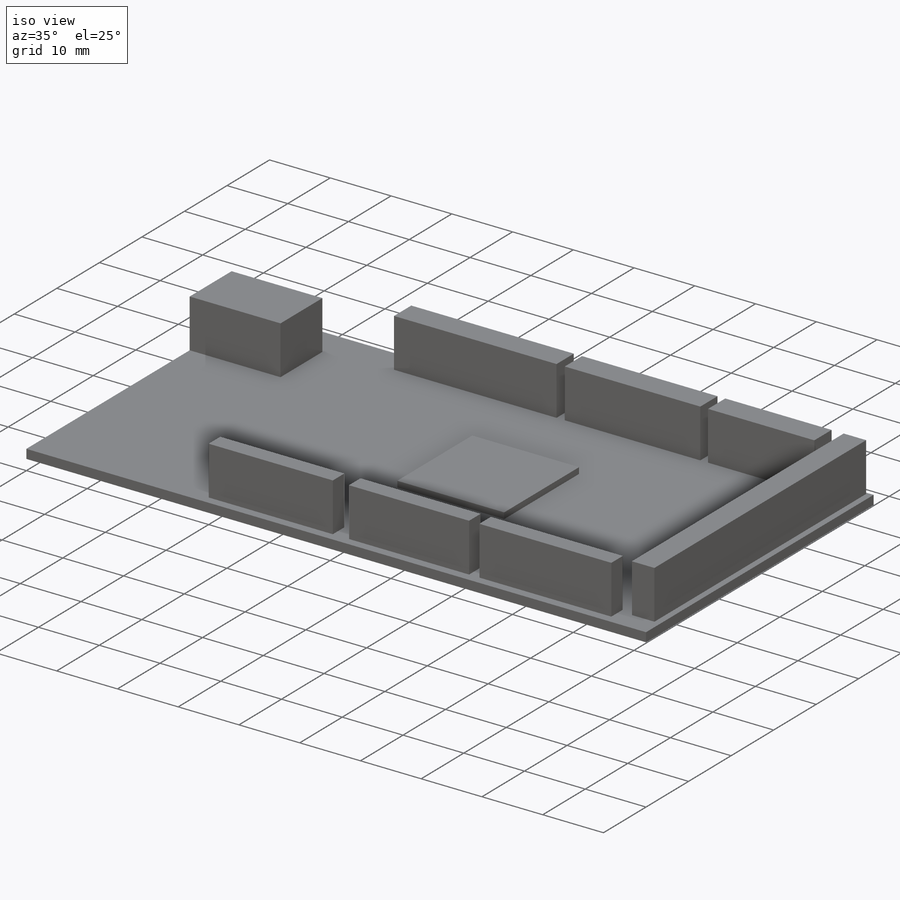
[diagram: iso view]
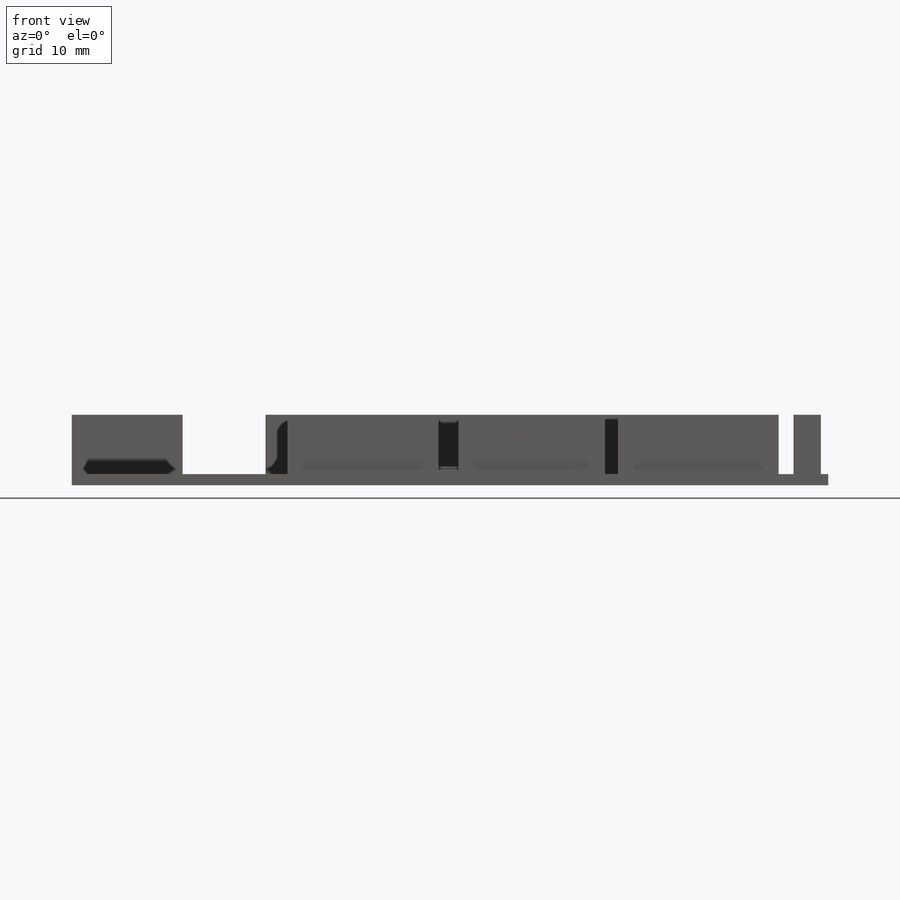
[diagram: front view]
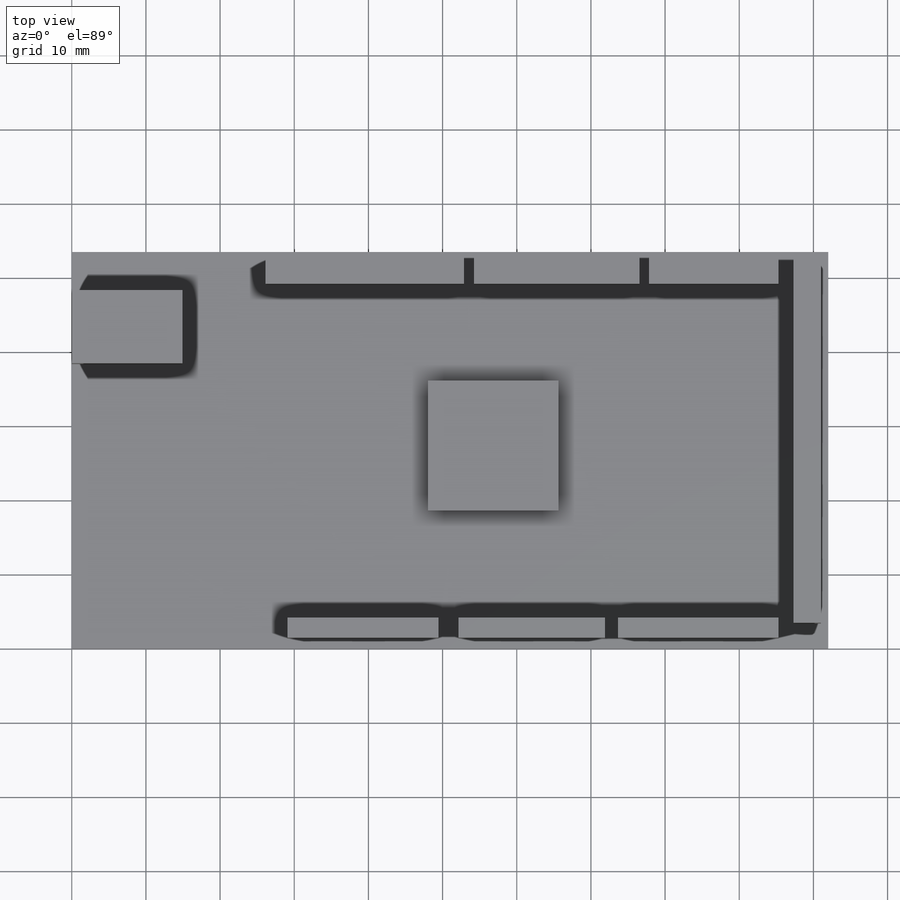
[diagram: top view]
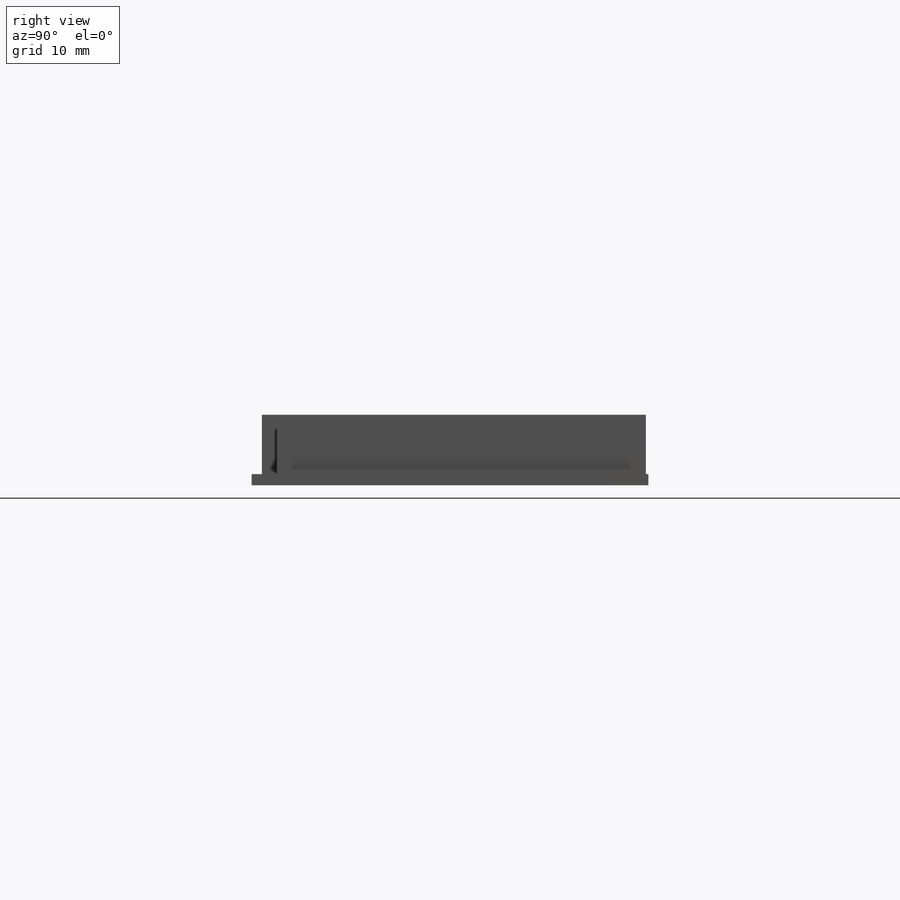
[diagram: right view]
SOLIDWORKS PART (.sldprt)
format: sldprt  version: not decoded by parser v0  size: 187,392 bytes
history: native  units: mm
features: sketch x4, extrude x4, material x1 (+16 scaffold rows collapsed)
feature tree (25):
  scaffold x16  (default folders/planes/origin — collapsed)
  material  "Sheet Moulding Compound"
  sketch  "Sketch1"  dims[D1=53.5mm D2=102.0mm]
  extrude  "Boss-Extrude1"  Depth=1.5mm
  sketch  "Sketch2"
  extrude  "Boss-Extrude2"  Depth=8mm
  sketch  "Sketch3"
  extrude  "Boss-Extrude3"  Depth=8mm
  sketch  "Sketch4"
  extrude  "Boss-Extrude4"  Depth=1mm
decode coverage: 5 of 8 modeling features carry decoded parameters
note: suppression state not decoded; provenance and decode notes live in map.json
